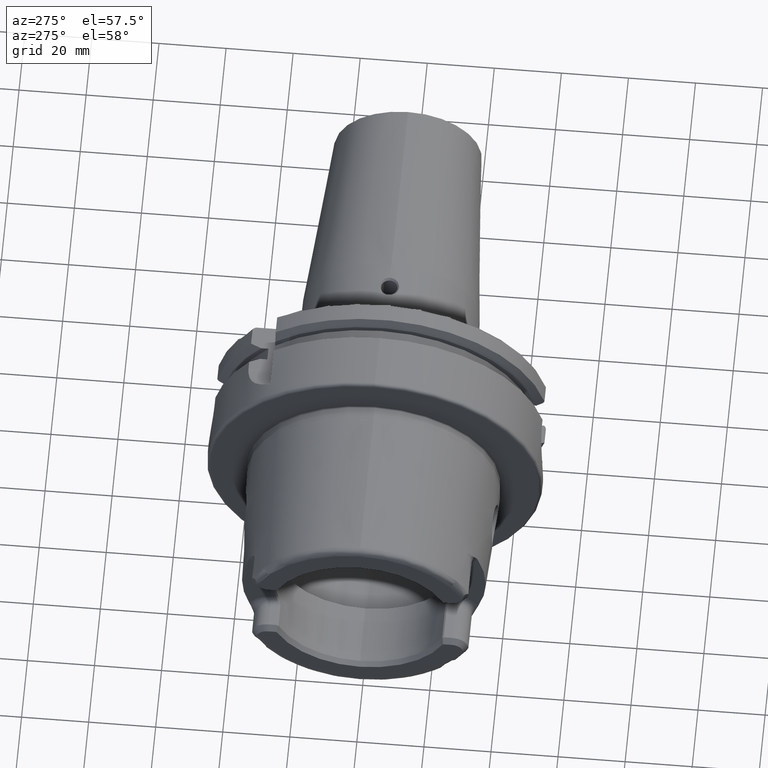
[diagram: clean part render]
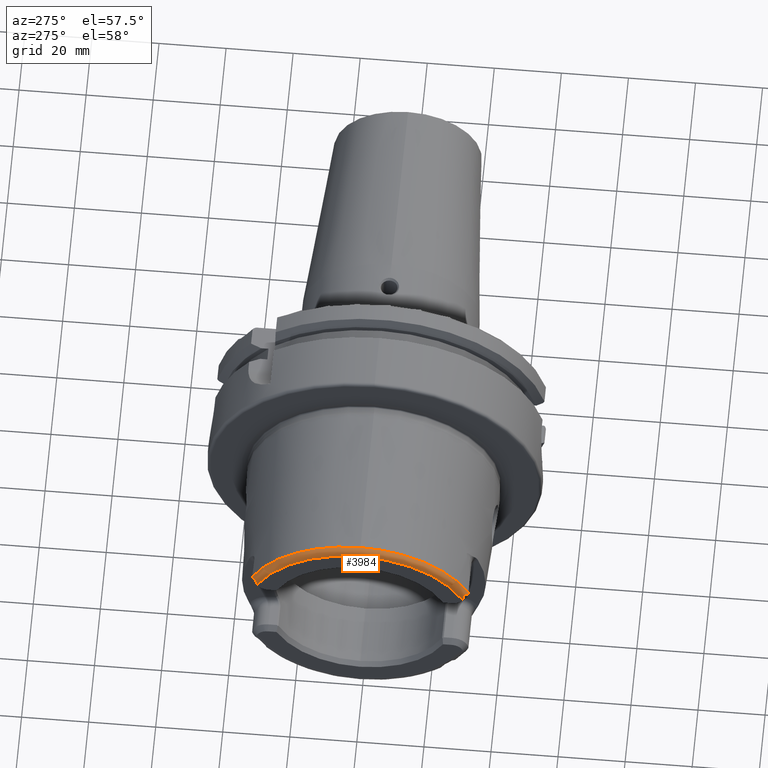
[diagram: same view with one face highlighted and labeled with its STEP entity id]
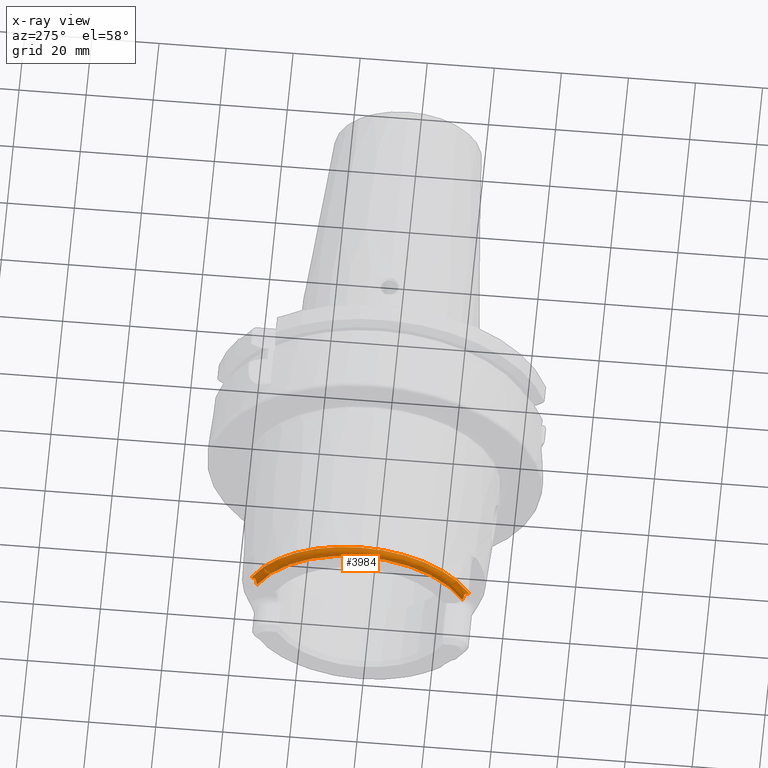
[diagram: x-ray of the same camera — body ghosted, the highlighted face saturated]
A machine part, auxiliary view. The second image highlights one B-rep face of the part: STEP entity #3984.
The next image is the same camera in x-ray: the body ghosted, the highlighted face saturated — about 0% of this face is hidden behind the body in this view.
In plain terms, the highlighted toroidal blend (fillet) surface has major radius 33.5937 mm and minor (blend) radius 2 mm.
Its self-contained STEP definition (entity closure, byte-faithful):
#32=CARTESIAN_POINT('',(-4.810007223652E1,0.E0,0.E0));
#33=DIRECTION('',(-1.E0,0.E0,0.E0));
#34=DIRECTION('',(0.E0,0.E0,1.E0));
#35=AXIS2_PLACEMENT_3D('',#32,#33,#34);
#630=CARTESIAN_POINT('',(-4.810007223652E1,0.E0,0.E0));
#631=DIRECTION('',(-1.E0,0.E0,0.E0));
#632=DIRECTION('',(0.E0,-9.060367502718E-1,4.231990160161E-1));
#633=AXIS2_PLACEMENT_3D('',#630,#631,#632);
#778=CARTESIAN_POINT('',(-4.85E1,3.224995489266E1,1.491098202986E1));
#779=CARTESIAN_POINT('',(-4.843514451693E1,3.224978171891E1,1.495125840389E1));
#780=CARTESIAN_POINT('',(-4.830445928787E1,3.224851980421E1,1.501775367232E1));
#781=CARTESIAN_POINT('',(-4.816897543179E1,3.224727330625E1,1.505334947830E1));
#782=CARTESIAN_POINT('',(-4.810007223652E1,3.224696179732E1,1.506217324853E1));
#829=CARTESIAN_POINT('',(-4.85E1,3.224995489266E1,1.491098202986E1));
#830=CARTESIAN_POINT('',(-4.855074283124E1,3.219887077202E1,1.499024929090E1));
#831=CARTESIAN_POINT('',(-4.864891901277E1,3.209619950703E1,1.514015471598E1));
#832=CARTESIAN_POINT('',(-4.878912089962E1,3.194004929274E1,1.534209463768E1));
#833=CARTESIAN_POINT('',(-4.891831838915E1,3.178905698415E1,1.551344431121E1));
#834=CARTESIAN_POINT('',(-4.903730232697E1,3.164595595511E1,1.565300763746E1));
#835=CARTESIAN_POINT('',(-4.914734329147E1,3.151301698889E1,1.575904280759E1));
#836=CARTESIAN_POINT('',(-4.925763874430E1,3.138317803280E1,1.583362860408E1));
#837=CARTESIAN_POINT('',(-4.937621572287E1,3.125475950018E1,1.585888491049E1));
#838=CARTESIAN_POINT('',(-4.949050208407E1,3.115065554436E1,1.580438686198E1));
#839=CARTESIAN_POINT('',(-4.958842501649E1,3.107775531862E1,1.568588731476E1));
#840=CARTESIAN_POINT('',(-4.966941039193E1,3.102457547468E1,1.553784165399E1));
#841=CARTESIAN_POINT('',(-4.973987881872E1,3.097951334374E1,1.537111166122E1));
#842=CARTESIAN_POINT('',(-4.980452834500E1,3.093525193114E1,1.518263258997E1));
#843=CARTESIAN_POINT('',(-4.986374342687E1,3.088762876373E1,1.497160831411E1));
#844=CARTESIAN_POINT('',(-4.991671029636E1,3.083289801661E1,1.473589472194E1));
#845=CARTESIAN_POINT('',(-4.996068715475E1,3.076778033206E1,1.447461057182E1));
#846=CARTESIAN_POINT('',(-4.999139168833E1,3.069063123317E1,1.419178376552E1));
#847=CARTESIAN_POINT('',(-5.E1,3.062836175552E1,1.398422223922E1));
#848=CARTESIAN_POINT('',(-5.E1,3.059420437526E1,1.387564988957E1));
#850=CARTESIAN_POINT('',(-5.E1,-3.059420437526E1,1.387564988957E1));
#851=CARTESIAN_POINT('',(-5.E1,-3.062937655328E1,1.398744786651E1));
#852=CARTESIAN_POINT('',(-4.999089188957E1,-3.069324847764E1,1.420067359598E1));
#853=CARTESIAN_POINT('',(-4.995858869338E1,-3.077190565272E1,1.449032562099E1));
#854=CARTESIAN_POINT('',(-4.991298144907E1,-3.083750696256E1,1.475509899818E1));
#855=CARTESIAN_POINT('',(-4.985776612535E1,-3.089308041130E1,1.499557576183E1));
#856=CARTESIAN_POINT('',(-4.979495680989E1,-3.094232778046E1,1.521393310901E1));
#857=CARTESIAN_POINT('',(-4.972360438561E1,-3.099010432134E1,1.541404156234E1));
#858=CARTESIAN_POINT('',(-4.964589492684E1,-3.103958064051E1,1.558627230071E1));
#859=CARTESIAN_POINT('',(-4.955723649352E1,-3.109959946618E1,1.573108074587E1));
#860=CARTESIAN_POINT('',(-4.945312232293E1,-3.118225704897E1,1.583194799806E1));
#861=CARTESIAN_POINT('',(-4.933404762138E1,-3.129828990280E1,1.585890352672E1));
#862=CARTESIAN_POINT('',(-4.921353185632E1,-3.143432137689E1,1.580868497085E1));
#863=CARTESIAN_POINT('',(-4.910770149308E1,-3.156079240615E1,1.572350157184E1));
#864=CARTESIAN_POINT('',(-4.899971401366E1,-3.169137441366E1,1.561087951899E1));
#865=CARTESIAN_POINT('',(-4.888724667350E1,-3.182575845255E1,1.547332317816E1));
#866=CARTESIAN_POINT('',(-4.876720056629E1,-3.196480350055E1,1.531105099350E1));
#867=CARTESIAN_POINT('',(-4.863888427929E1,-3.210676820877E1,1.512487959147E1));
#868=CARTESIAN_POINT('',(-4.854739858617E1,-3.220223751003E1,1.498502512149E1));
#869=CARTESIAN_POINT('',(-4.85E1,-3.224995489266E1,1.491098202986E1));
#871=CARTESIAN_POINT('',(-5.E1,0.E0,0.E0));
#872=DIRECTION('',(-1.E0,0.E0,0.E0));
#873=DIRECTION('',(0.E0,-9.107116187708E-1,4.130427912890E-1));
#874=AXIS2_PLACEMENT_3D('',#871,#872,#873);
#881=CARTESIAN_POINT('',(-4.810007223652E1,-3.224696179732E1,1.506217324853E1));
#882=CARTESIAN_POINT('',(-4.816952114755E1,-3.224727577342E1,1.505327959372E1));
#883=CARTESIAN_POINT('',(-4.830553271211E1,-3.224853287724E1,1.501732689613E1));
#884=CARTESIAN_POINT('',(-4.843561491670E1,-3.224978297495E1,1.495096627752E1));
#885=CARTESIAN_POINT('',(-4.85E1,-3.224995489266E1,1.491098202986E1));
#2999=CARTESIAN_POINT('',(-4.810007223652E1,0.E0,3.559122937082E1));
#3000=CARTESIAN_POINT('',(-4.810007223652E1,3.224696179732E1,1.506217324853E1));
#3001=VERTEX_POINT('',#2999);
#3002=VERTEX_POINT('',#3000);
#3003=CARTESIAN_POINT('',(-4.810007223652E1,-3.224696179732E1,
1.506217324853E1));
#3004=VERTEX_POINT('',#3003);
#3025=CARTESIAN_POINT('',(-5.E1,-3.059420437526E1,1.387564988957E1));
#3026=VERTEX_POINT('',#3025);
#3029=CARTESIAN_POINT('',(-4.85E1,-3.224995489266E1,1.491098202986E1));
#3030=VERTEX_POINT('',#3029);
#3039=CARTESIAN_POINT('',(-5.E1,3.059420437526E1,1.387564988957E1));
#3040=VERTEX_POINT('',#3039);
#3043=CARTESIAN_POINT('',(-4.85E1,3.224995489266E1,1.491098202986E1));
#3044=VERTEX_POINT('',#3043);
#3969=CARTESIAN_POINT('',(-4.8E1,0.E0,0.E0));
#3970=DIRECTION('',(1.E0,0.E0,0.E0));
#3971=DIRECTION('',(0.E0,9.999995644445E-1,-9.333331978268E-4));
#3972=AXIS2_PLACEMENT_3D('',#3969,#3970,#3971);
#3973=TOROIDAL_SURFACE('',#3972,3.359373455294E1,2.E0);
#3974=ORIENTED_EDGE('',*,*,#3871,.F.);
#3975=ORIENTED_EDGE('',*,*,#3888,.T.);
#3976=ORIENTED_EDGE('',*,*,#3290,.F.);
#3977=ORIENTED_EDGE('',*,*,#3765,.F.);
#3979=ORIENTED_EDGE('',*,*,#3978,.T.);
#3980=ORIENTED_EDGE('',*,*,#3962,.F.);
#3981=ORIENTED_EDGE('',*,*,#3819,.T.);
#3982=EDGE_LOOP('',(#3974,#3975,#3976,#3977,#3979,#3980,#3981));
#3983=FACE_OUTER_BOUND('',#3982,.F.);
#3984=ADVANCED_FACE('',(#3983),#3973,.T.);
#36=CIRCLE('',#35,3.559122937082E1);
#634=CIRCLE('',#633,3.559122937082E1);
#783=B_SPLINE_CURVE_WITH_KNOTS('',3,(#778,#779,#780,#781,#782),.UNSPECIFIED.,
.F.,.F.,(4,1,4),(0.E0,5.E-1,1.E0),.UNSPECIFIED.);
#849=B_SPLINE_CURVE_WITH_KNOTS('',3,(#829,#830,#831,#832,#833,#834,#835,#836,
#837,#838,#839,#840,#841,#842,#843,#844,#845,#846,#847,#848),.UNSPECIFIED.,.F.,
.F.,(4,1,1,1,1,1,1,1,1,1,1,1,1,1,1,1,1,4),(0.E0,5.882352941176E-2,
1.176470588235E-1,1.764705882353E-1,2.352941176471E-1,2.941176470588E-1,
3.529411764706E-1,4.117647058824E-1,4.705882352941E-1,5.294117647059E-1,
5.882352941176E-1,6.470588235294E-1,7.058823529412E-1,7.647058823529E-1,
8.235294117647E-1,8.823529411765E-1,9.411764705882E-1,1.E0),.UNSPECIFIED.);
#870=B_SPLINE_CURVE_WITH_KNOTS('',3,(#850,#851,#852,#853,#854,#855,#856,#857,
#858,#859,#860,#861,#862,#863,#864,#865,#866,#867,#868,#869),.UNSPECIFIED.,.F.,
.F.,(4,1,1,1,1,1,1,1,1,1,1,1,1,1,1,1,1,4),(0.E0,5.882352941176E-2,
1.176470588235E-1,1.764705882353E-1,2.352941176471E-1,2.941176470588E-1,
3.529411764706E-1,4.117647058824E-1,4.705882352941E-1,5.294117647059E-1,
5.882352941176E-1,6.470588235294E-1,7.058823529412E-1,7.647058823529E-1,
8.235294117647E-1,8.823529411765E-1,9.411764705882E-1,1.E0),.UNSPECIFIED.);
#875=CIRCLE('',#874,3.359373455294E1);
#886=B_SPLINE_CURVE_WITH_KNOTS('',3,(#881,#882,#883,#884,#885),.UNSPECIFIED.,
.F.,.F.,(4,1,4),(0.E0,5.E-1,1.E0),.UNSPECIFIED.);
#3290=EDGE_CURVE('',#3001,#3002,#36,.T.);
#3765=EDGE_CURVE('',#3004,#3001,#634,.T.);
#3819=EDGE_CURVE('',#3026,#3040,#875,.T.);
#3871=EDGE_CURVE('',#3044,#3040,#849,.T.);
#3888=EDGE_CURVE('',#3044,#3002,#783,.T.);
#3962=EDGE_CURVE('',#3026,#3030,#870,.T.);
#3978=EDGE_CURVE('',#3004,#3030,#886,.T.);